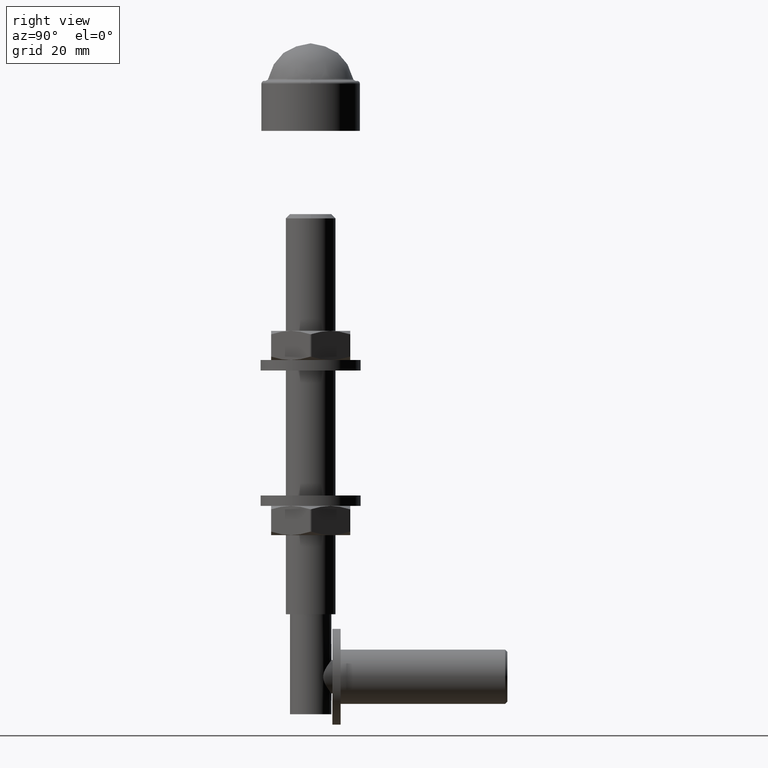
[diagram: clean part render]
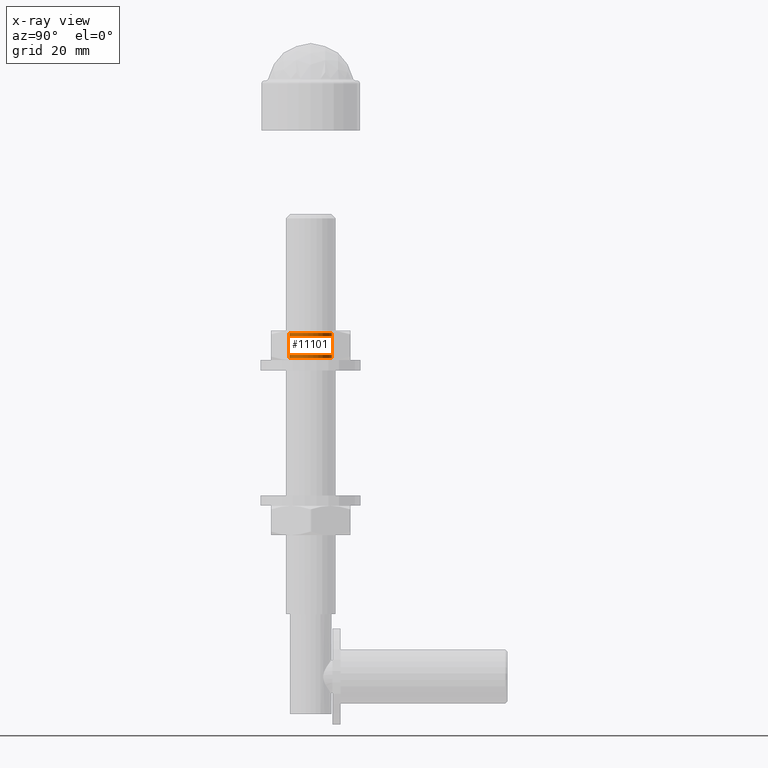
[diagram: x-ray — body ghosted, one internal face saturated and labeled with its STEP entity id]
A machine part, right view, then the same camera in x-ray: the body is ghosted and one INTERNAL B-rep face — a face not visible from any outside direction — is saturated and labeled: STEP entity #11101.
In plain terms, the highlighted cylindrical surface (bore or boss wall) has radius 5.1 mm, axis along (0, 0, 1).
Its self-contained STEP definition (entity closure, byte-faithful):
#371 = CARTESIAN_POINT ( 'NONE',  ( 0.000000000000000000, 3.500000000000000000, 0.000000000000000000 ) ) ;
#1186 = AXIS2_PLACEMENT_3D ( 'NONE', #371, #7547, #10024 ) ;
#1964 = EDGE_LOOP ( 'NONE', ( #2891 ) ) ;
#2891 = ORIENTED_EDGE ( 'NONE', *, *, #10370, .T. ) ;
#4707 = VERTEX_POINT ( 'NONE', #7601 ) ;
#5227 = CARTESIAN_POINT ( 'NONE',  ( 0.000000000000000000, -2.999999999999994227, 5.099999999999998757 ) ) ;
#5254 = EDGE_CURVE ( 'NONE', #4707, #4707, #12136, .T. ) ;
#6006 = CARTESIAN_POINT ( 'NONE',  ( 0.000000000000000000, -2.999999999999994227, 0.000000000000000000 ) ) ;
#6013 = AXIS2_PLACEMENT_3D ( 'NONE', #6006, #7209, #13262 ) ;
#6851 = DIRECTION ( 'NONE',  ( 0.000000000000000000, 0.000000000000000000, 1.000000000000000000 ) ) ;
#6904 = DIRECTION ( 'NONE',  ( 0.000000000000000000, 1.000000000000000000, 0.000000000000000000 ) ) ;
#7209 = DIRECTION ( 'NONE',  ( -0.000000000000000000, -1.000000000000000000, -0.000000000000000000 ) ) ;
#7547 = DIRECTION ( 'NONE',  ( -0.000000000000000000, 1.000000000000000000, -0.000000000000000000 ) ) ;
#7601 = CARTESIAN_POINT ( 'NONE',  ( 0.000000000000000000, 2.999999999999996891, 5.099999999999998757 ) ) ;
#8132 = CARTESIAN_POINT ( 'NONE',  ( 0.000000000000000000, 2.999999999999996891, 0.000000000000000000 ) ) ;
#8607 = AXIS2_PLACEMENT_3D ( 'NONE', #8132, #6904, #6851 ) ;
#8801 = ORIENTED_EDGE ( 'NONE', *, *, #5254, .T. ) ;
#10024 = DIRECTION ( 'NONE',  ( 0.000000000000000000, 0.000000000000000000, 1.000000000000000000 ) ) ;
#10370 = EDGE_CURVE ( 'NONE', #10423, #10423, #15485, .T. ) ;
#10423 = VERTEX_POINT ( 'NONE', #5227 ) ;
#10957 = EDGE_LOOP ( 'NONE', ( #8801 ) ) ;
#11101 = ADVANCED_FACE ( 'NONE', ( #11659, #13755 ), #11478, .F. ) ;
#11478 = CYLINDRICAL_SURFACE ( 'NONE', #1186, 5.099999999999998757 ) ;
#11659 = FACE_OUTER_BOUND ( 'NONE', #10957, .T. ) ;
#12136 = CIRCLE ( 'NONE', #8607, 5.099999999999998757 ) ;
#13262 = DIRECTION ( 'NONE',  ( 0.000000000000000000, 0.000000000000000000, 1.000000000000000000 ) ) ;
#13755 = FACE_OUTER_BOUND ( 'NONE', #1964, .T. ) ;
#15485 = CIRCLE ( 'NONE', #6013, 5.099999999999998757 ) ;